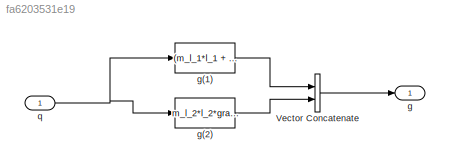
MODEL slx_fa6203531e19
KIND model
CONFIG AbsTol = auto
CONFIG EnableMultiTasking = on
CONFIG FixedStep = auto
CONFIG MaxStep = auto
CONFIG MinStep = auto
CONFIG RelTol = 1e-3
CONFIG SampleTimeConstraint = Unconstrained
CONFIG Solver = ode45
CONFIG SolverName = ode45
CONFIG StartTime = 0.0
CONFIG StopTime = 10.0
BLOCK [Concatenate] Vector Concatenate
  Ports = [2, 1]
BLOCK [Outport] g
  IconDisplay = Port number
  PortDimensions = 2
BLOCK [Fcn] g(1)
  Expr = (m_l_1*l_1 + m_m_2*a_1 + m_l_2*a_1)*gravity*cos(u(1)) + m_l_2*l_2*gravity*cos(u(1)+u(2))
BLOCK [Fcn] g(2)
  Expr = m_l_2*l_2*gravity*cos(u(1)+u(2))
BLOCK [Inport] q
  IconDisplay = Port number
  PortDimensions = 2
LINE Vector Concatenate:1 -> g:1
LINE g(1):1 -> Vector Concatenate:1
LINE g(2):1 -> Vector Concatenate:2
NET q:1 -> g(1):1, g(2):1
note: NET lines group one-source signal fan-out (src -> all destinations, sorted); 1:1 wires keep LINE
